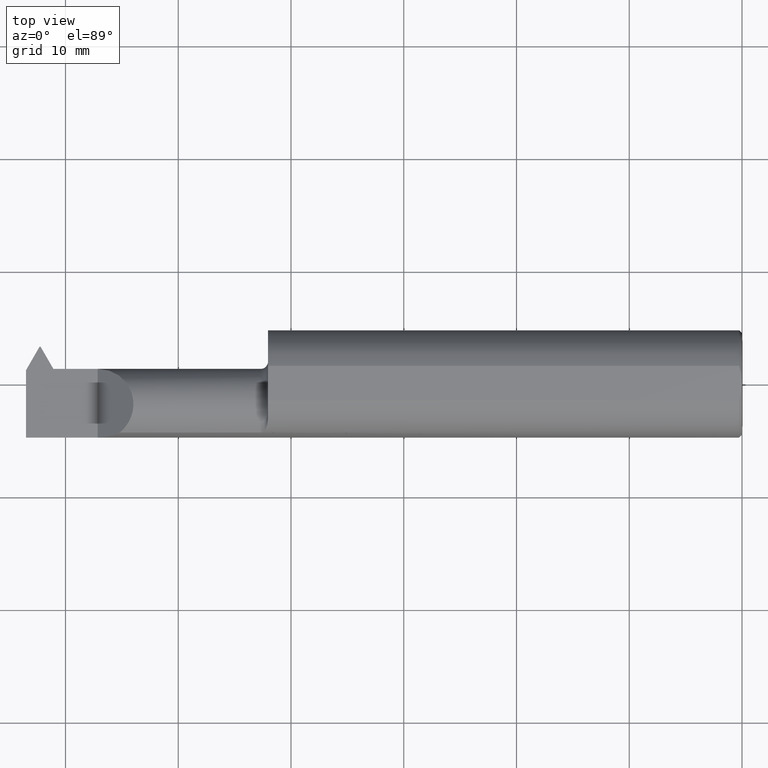
[diagram: clean part render]
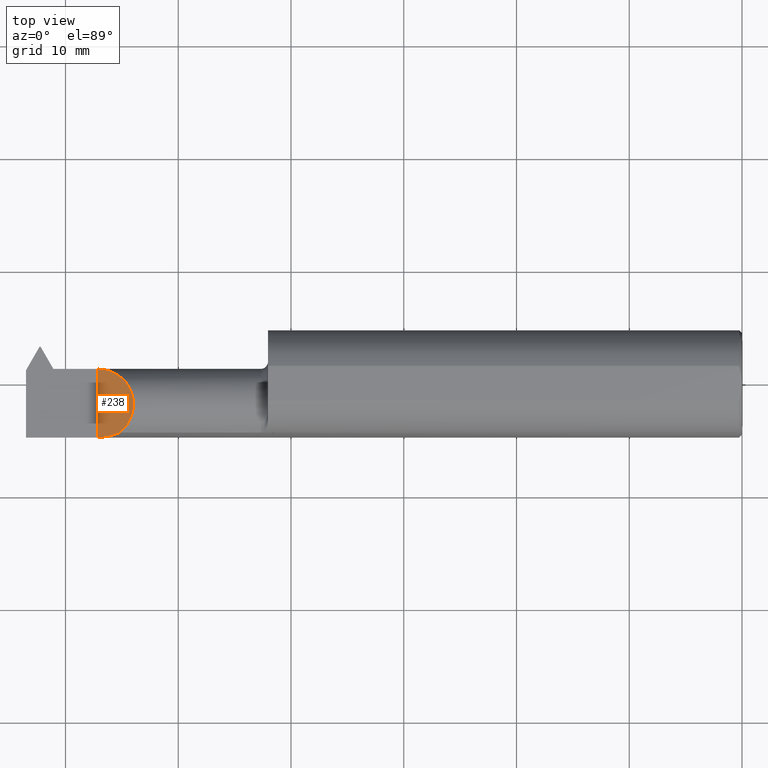
[diagram: same view with one face highlighted and labeled with its STEP entity id]
A machine part, top view. The second image highlights one B-rep face of the part: STEP entity #238.
In plain terms, the highlighted planar face has unit normal (0.7071, 0, -0.7071).
Its self-contained STEP definition (entity closure, byte-faithful):
#25 = ORIENTED_EDGE ( 'NONE', *, *, #329, .F. ) ;
#27 = CARTESIAN_POINT ( 'NONE',  ( -2.250000000000000000, -0.2500000000000000000, 0.000000000000000000 ) ) ;
#30 = ORIENTED_EDGE ( 'NONE', *, *, #31, .T. ) ;
#31 = EDGE_CURVE ( 'NONE', #618, #571, #629, .T. ) ;
#38 = CARTESIAN_POINT ( 'NONE',  ( -2.197245014477020586, -0.1817375716013221731, 0.05275498552297869931 ) ) ;
#40 = EDGE_LOOP ( 'NONE', ( #433, #25, #30 ) ) ;
#142 = FACE_OUTER_BOUND ( 'NONE', #40, .T. ) ;
#146 = CARTESIAN_POINT ( 'NONE',  ( -2.250000000000000000, 0.05265000000000022440, 0.000000000000000000 ) ) ;
#208 = CARTESIAN_POINT ( 'NONE',  ( -2.250000000000000000, -0.2500000000000000000, 0.000000000000000000 ) ) ;
#238 = ADVANCED_FACE ( 'NONE', ( #142 ), #611, .F. ) ;
#307 = CARTESIAN_POINT ( 'NONE',  ( -2.250000000000000000, 0.05265000000000022440, 0.000000000000000000 ) ) ;
#317 = EDGE_CURVE ( 'NONE', #464, #571, #426, .T. ) ;
#329 = EDGE_CURVE ( 'NONE', #618, #464, #766, .T. ) ;
#350 = DIRECTION ( 'NONE',  ( -0.7071067811865513475, 0.000000000000000000, -0.7071067811865435759 ) ) ;
#359 = CARTESIAN_POINT ( 'NONE',  ( -2.060312847100502331, -0.08257136335451466247, 0.1896871528994956146 ) ) ;
#426 =( BOUNDED_CURVE ( )  B_SPLINE_CURVE ( 3, ( #146, #826, #359, #501 ),
 .UNSPECIFIED., .F., .T. ) 
 B_SPLINE_CURVE_WITH_KNOTS ( ( 4, 4 ),
 ( 1.570796326794896558, 4.048029203480146165 ),
 .UNSPECIFIED. ) 
 CURVE ( )  GEOMETRIC_REPRESENTATION_ITEM ( )  RATIONAL_B_SPLINE_CURVE ( ( 1.000000000000000000, 0.5507363490864389810, 0.5507363490864389810, 1.000000000000000000 ) ) 
 REPRESENTATION_ITEM ( '' )  );
#430 = CARTESIAN_POINT ( 'NONE',  ( -2.172930599499919513, -0.1707639599170687472, 0.07706940050007969611 ) ) ;
#433 = ORIENTED_EDGE ( 'NONE', *, *, #317, .F. ) ;
#464 = VERTEX_POINT ( 'NONE', #307 ) ;
#501 = CARTESIAN_POINT ( 'NONE',  ( -2.172930599499919513, -0.1707639599170687472, 0.07706940050007969611 ) ) ;
#505 = CARTESIAN_POINT ( 'NONE',  ( -2.172930599499919513, -0.1707639599170687472, 0.07706940050007969611 ) ) ;
#534 = CARTESIAN_POINT ( 'NONE',  ( -2.250000000000000000, -0.1873499999999998500, 0.000000000000000000 ) ) ;
#552 = DIRECTION ( 'NONE',  ( 0.7071067811865436870, 0.000000000000000000, -0.7071067811865514585 ) ) ;
#571 = VERTEX_POINT ( 'NONE', #505 ) ;
#585 = AXIS2_PLACEMENT_3D ( 'NONE', #208, #552, #350 ) ;
#611 = PLANE ( 'NONE',  #585 ) ;
#618 = VERTEX_POINT ( 'NONE', #534 ) ;
#629 =( BOUNDED_CURVE ( )  B_SPLINE_CURVE ( 3, ( #775, #835, #38, #430 ),
 .UNSPECIFIED., .F., .F. ) 
 B_SPLINE_CURVE_WITH_KNOTS ( ( 4, 4 ),
 ( 4.712388980384689674, 5.136341099405679067 ),
 .UNSPECIFIED. ) 
 CURVE ( )  GEOMETRIC_REPRESENTATION_ITEM ( )  RATIONAL_B_SPLINE_CURVE ( ( 1.000000000000000000, 0.9850780508747842834, 0.9850780508747842834, 1.000000000000000000 ) ) 
 REPRESENTATION_ITEM ( '' )  );
#669 = VECTOR ( 'NONE', #831, 39.37007874015748143 ) ;
#766 = LINE ( 'NONE', #27, #669 ) ;
#775 = CARTESIAN_POINT ( 'NONE',  ( -2.250000000000000000, -0.1873499999999998500, 0.000000000000000000 ) ) ;
#826 = CARTESIAN_POINT ( 'NONE',  ( -2.106959123870335571, 0.05265000000000018970, 0.1430408761296629028 ) ) ;
#831 = DIRECTION ( 'NONE',  ( -0.000000000000000000, 1.000000000000000000, -0.000000000000000000 ) ) ;
#835 = CARTESIAN_POINT ( 'NONE',  ( -2.223323963392672908, -0.1873499999999998500, 0.02667603660732702914 ) ) ;